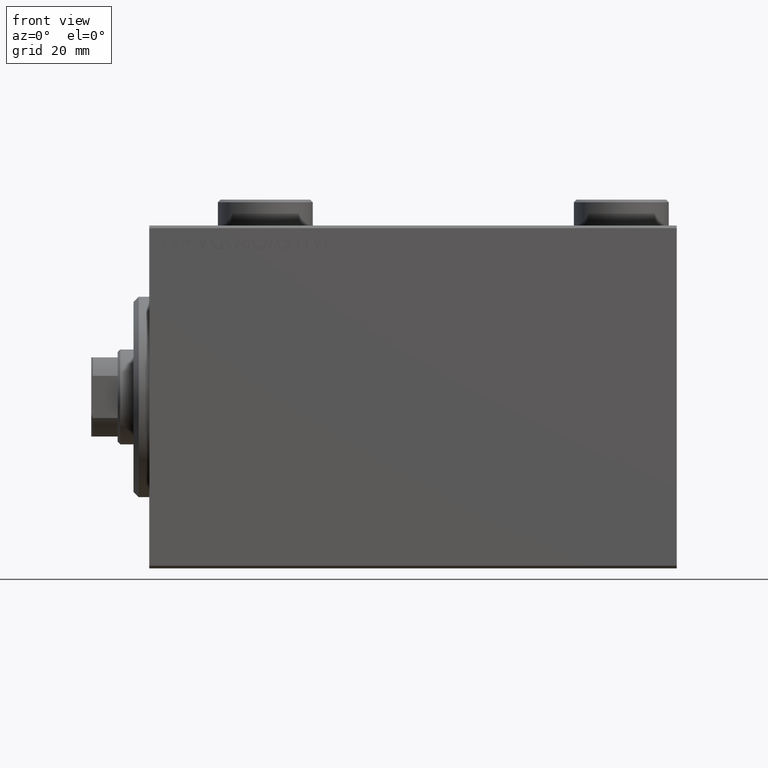
[diagram: clean part render]
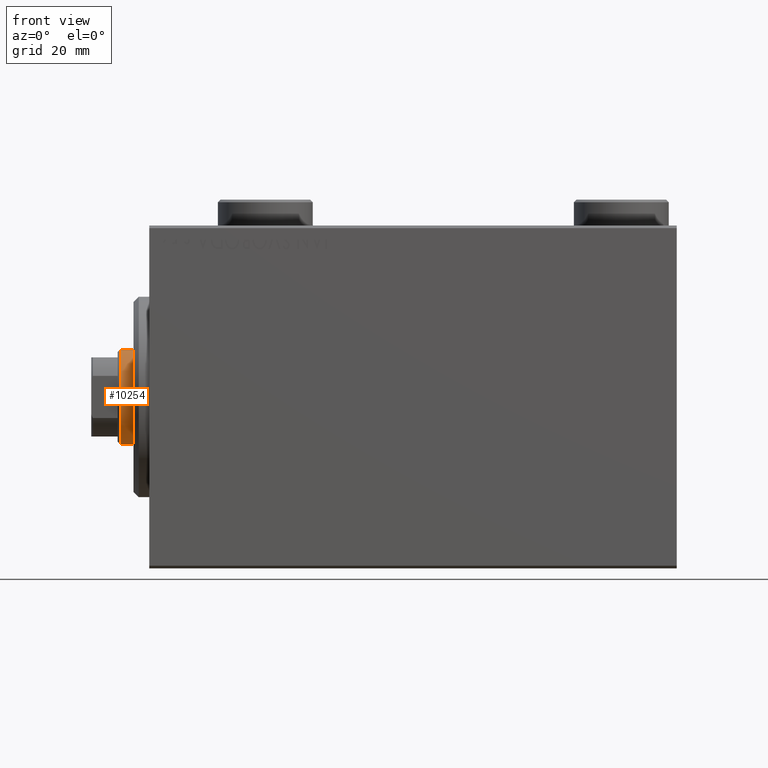
[diagram: same view with one face highlighted and labeled with its STEP entity id]
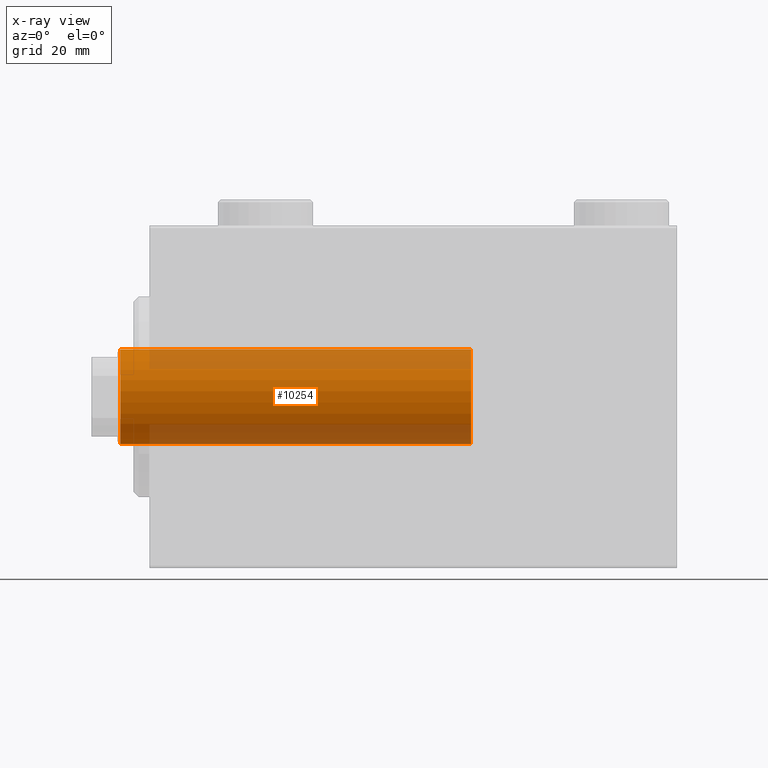
[diagram: x-ray of the same camera — body ghosted, the highlighted face saturated]
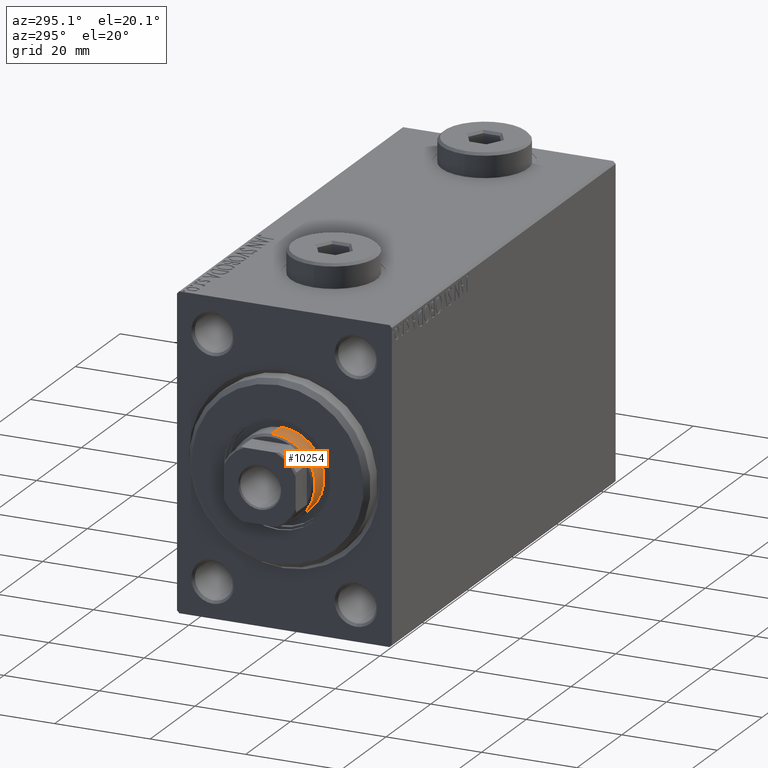
[diagram: same view with one face highlighted and labeled with its STEP entity id]
A machine part, front view. The second image highlights one B-rep face of the part: STEP entity #10254.
The next image is the same camera in x-ray: the body ghosted, the highlighted face saturated — about 38% of this face is hidden behind the body in this view.
A second angle (auxiliary view) of the same face is appended — the face is thin or edge-on in the first view.
In plain terms, the highlighted cylindrical surface (partial cylindrical patch) has radius 9 mm, axis along (1, -0, -0).
Its self-contained STEP definition (entity closure, byte-faithful):
#1791 = EDGE_CURVE ( 'NONE', #22117, #26110, #31337, .T. ) ;
#4124 = EDGE_CURVE ( 'NONE', #26110, #11792, #35411, .T. ) ;
#5620 = ORIENTED_EDGE ( 'NONE', *, *, #1791, .T. ) ;
#6863 = CARTESIAN_POINT ( 'NONE',  ( -9.000000000000000000, 0.000000000000000000, 100.0000000000000000 ) ) ;
#8701 = EDGE_CURVE ( 'NONE', #22117, #28457, #28894, .T. ) ;
#10254 = ADVANCED_FACE ( 'NONE', ( #43773 ), #19575, .T. ) ;
#10955 = EDGE_CURVE ( 'NONE', #11792, #28457, #19821, .T. ) ;
#11792 = VERTEX_POINT ( 'NONE', #29365 ) ;
#14639 = DIRECTION ( 'NONE',  ( -0.000000000000000000, -0.000000000000000000, -1.000000000000000000 ) ) ;
#15299 = CARTESIAN_POINT ( 'NONE',  ( 9.000000000000000000, 1.102182119232617714E-15, 99.49999999999998579 ) ) ;
#16876 = AXIS2_PLACEMENT_3D ( 'NONE', #33601, #26241, #40087 ) ;
#17374 = AXIS2_PLACEMENT_3D ( 'NONE', #38137, #27073, #33761 ) ;
#17604 = AXIS2_PLACEMENT_3D ( 'NONE', #19414, #27195, #29990 ) ;
#19414 = CARTESIAN_POINT ( 'NONE',  ( 0.000000000000000000, 0.000000000000000000, 33.00000000000000000 ) ) ;
#19575 = CYLINDRICAL_SURFACE ( 'NONE', #16876, 9.000000000000000000 ) ;
#19821 = CIRCLE ( 'NONE', #17604, 9.000000000000000000 ) ;
#20681 = DIRECTION ( 'NONE',  ( -0.000000000000000000, -0.000000000000000000, -1.000000000000000000 ) ) ;
#21378 = CARTESIAN_POINT ( 'NONE',  ( -9.000000000000000000, 0.000000000000000000, 99.49999999999998579 ) ) ;
#22117 = VERTEX_POINT ( 'NONE', #15299 ) ;
#22426 = CARTESIAN_POINT ( 'NONE',  ( 9.000000000000000000, 1.102182119232617714E-15, 100.0000000000000000 ) ) ;
#24618 = ORIENTED_EDGE ( 'NONE', *, *, #8701, .F. ) ;
#26110 = VERTEX_POINT ( 'NONE', #21378 ) ;
#26241 = DIRECTION ( 'NONE',  ( -0.000000000000000000, -0.000000000000000000, -1.000000000000000000 ) ) ;
#27073 = DIRECTION ( 'NONE',  ( 0.000000000000000000, 0.000000000000000000, -1.000000000000000000 ) ) ;
#27195 = DIRECTION ( 'NONE',  ( 0.000000000000000000, 0.000000000000000000, 1.000000000000000000 ) ) ;
#28457 = VERTEX_POINT ( 'NONE', #35018 ) ;
#28894 = LINE ( 'NONE', #22426, #30067 ) ;
#29365 = CARTESIAN_POINT ( 'NONE',  ( -9.000000000000000000, 0.000000000000000000, 33.00000000000000000 ) ) ;
#29990 = DIRECTION ( 'NONE',  ( 1.000000000000000000, 0.000000000000000000, 0.000000000000000000 ) ) ;
#30067 = VECTOR ( 'NONE', #14639, 1000.000000000000000 ) ;
#30282 = ORIENTED_EDGE ( 'NONE', *, *, #4124, .T. ) ;
#30748 = EDGE_LOOP ( 'NONE', ( #24618, #5620, #30282, #33214 ) ) ;
#31337 = CIRCLE ( 'NONE', #17374, 9.000000000000000000 ) ;
#33214 = ORIENTED_EDGE ( 'NONE', *, *, #10955, .T. ) ;
#33601 = CARTESIAN_POINT ( 'NONE',  ( 0.000000000000000000, 0.000000000000000000, 100.0000000000000000 ) ) ;
#33761 = DIRECTION ( 'NONE',  ( 1.000000000000000000, 0.000000000000000000, 0.000000000000000000 ) ) ;
#35018 = CARTESIAN_POINT ( 'NONE',  ( 9.000000000000000000, 1.102182119232617714E-15, 33.00000000000000000 ) ) ;
#35411 = LINE ( 'NONE', #6863, #38019 ) ;
#38019 = VECTOR ( 'NONE', #20681, 1000.000000000000000 ) ;
#38137 = CARTESIAN_POINT ( 'NONE',  ( 0.000000000000000000, 0.000000000000000000, 99.49999999999998579 ) ) ;
#40087 = DIRECTION ( 'NONE',  ( -1.000000000000000000, 0.000000000000000000, 0.000000000000000000 ) ) ;
#43773 = FACE_OUTER_BOUND ( 'NONE', #30748, .T. ) ;